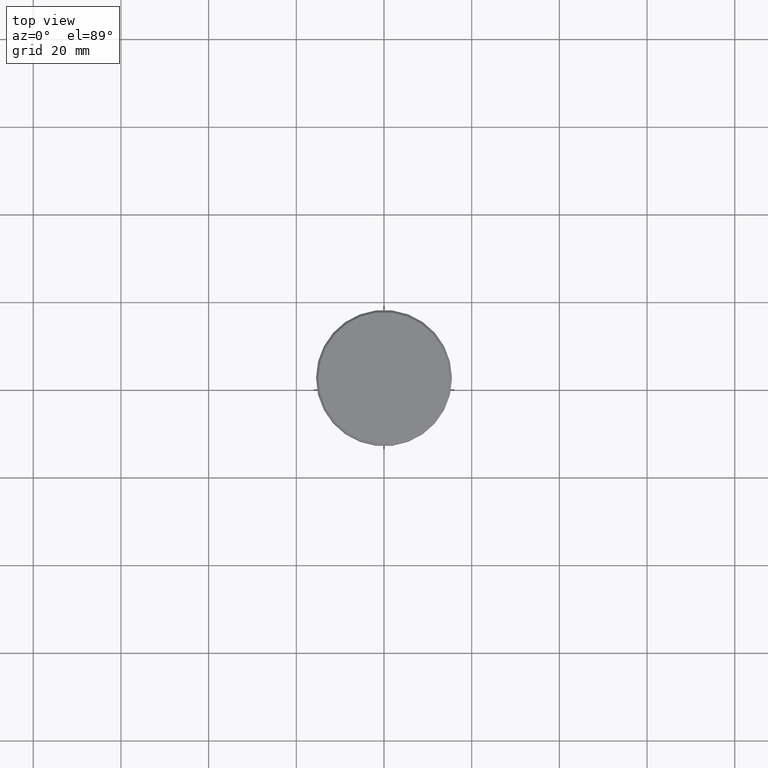
[diagram: clean part render]
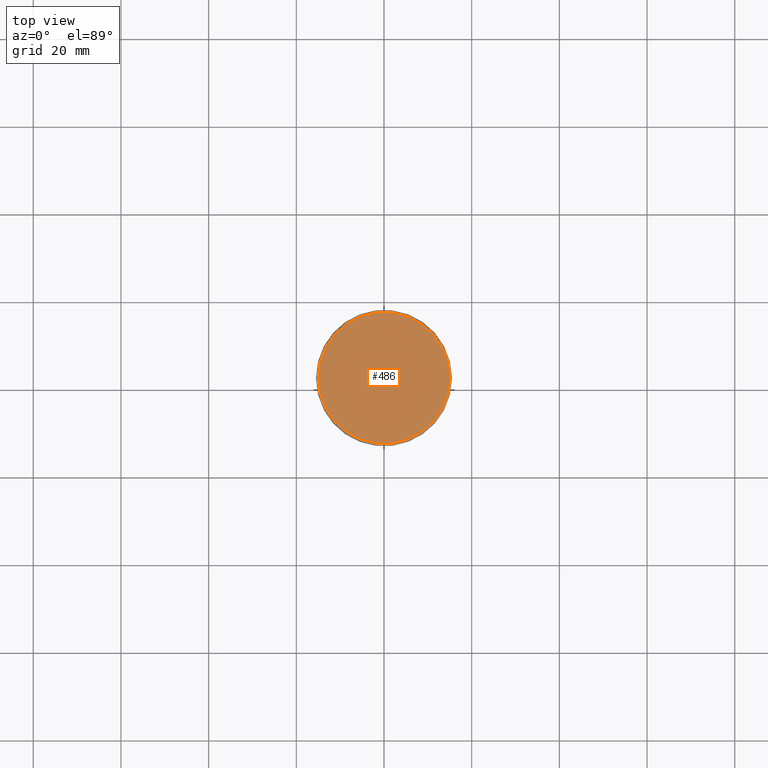
[diagram: same view with one face highlighted and labeled with its STEP entity id]
A machine part, top view. The second image highlights one B-rep face of the part: STEP entity #486.
In plain terms, the highlighted planar face has unit normal (0, -0, 1).
Its self-contained STEP definition (entity closure, byte-faithful):
#94 = DIRECTION ( 'NONE',  ( -0.000000000000000000, -0.000000000000000000, 1.000000000000000000 ) ) ;
#133 = PLANE ( 'NONE',  #234 ) ;
#152 = DIRECTION ( 'NONE',  ( 1.000000000000000000, 0.000000000000000000, 0.000000000000000000 ) ) ;
#158 = CARTESIAN_POINT ( 'NONE',  ( 0.000000000000000000, 0.000000000000000000, 0.000000000000000000 ) ) ;
#186 = CIRCLE ( 'NONE', #396, 15.00000000000001421 ) ;
#198 = ORIENTED_EDGE ( 'NONE', *, *, #997, .T. ) ;
#234 = AXIS2_PLACEMENT_3D ( 'NONE', #242, #857, #1142 ) ;
#242 = CARTESIAN_POINT ( 'NONE',  ( 0.000000000000000000, 0.000000000000000000, 0.000000000000000000 ) ) ;
#275 = EDGE_CURVE ( 'NONE', #453, #584, #438, .T. ) ;
#396 = AXIS2_PLACEMENT_3D ( 'NONE', #158, #94, #152 ) ;
#438 = CIRCLE ( 'NONE', #549, 15.00000000000001421 ) ;
#453 = VERTEX_POINT ( 'NONE', #1051 ) ;
#486 = ADVANCED_FACE ( 'NONE', ( #788 ), #133, .T. ) ;
#544 = CARTESIAN_POINT ( 'NONE',  ( 15.00000000000001421, 1.867586368699714559E-15, 0.000000000000000000 ) ) ;
#549 = AXIS2_PLACEMENT_3D ( 'NONE', #916, #833, #1123 ) ;
#584 = VERTEX_POINT ( 'NONE', #544 ) ;
#788 = FACE_OUTER_BOUND ( 'NONE', #839, .T. ) ;
#833 = DIRECTION ( 'NONE',  ( -0.000000000000000000, -0.000000000000000000, 1.000000000000000000 ) ) ;
#839 = EDGE_LOOP ( 'NONE', ( #845, #198 ) ) ;
#845 = ORIENTED_EDGE ( 'NONE', *, *, #275, .T. ) ;
#857 = DIRECTION ( 'NONE',  ( 0.000000000000000000, -0.000000000000000000, 1.000000000000000000 ) ) ;
#916 = CARTESIAN_POINT ( 'NONE',  ( 0.000000000000000000, 0.000000000000000000, 0.000000000000000000 ) ) ;
#997 = EDGE_CURVE ( 'NONE', #584, #453, #186, .T. ) ;
#1051 = CARTESIAN_POINT ( 'NONE',  ( -15.00000000000001421, 0.000000000000000000, 0.000000000000000000 ) ) ;
#1123 = DIRECTION ( 'NONE',  ( 1.000000000000000000, 0.000000000000000000, 0.000000000000000000 ) ) ;
#1142 = DIRECTION ( 'NONE',  ( 1.000000000000000000, 0.000000000000000000, 0.000000000000000000 ) ) ;